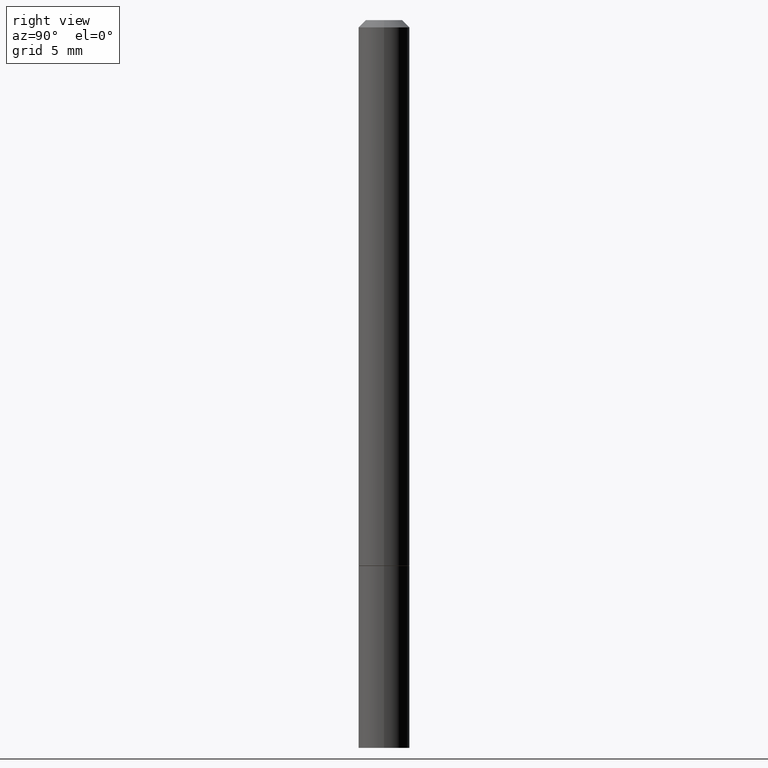
[diagram: clean part render]
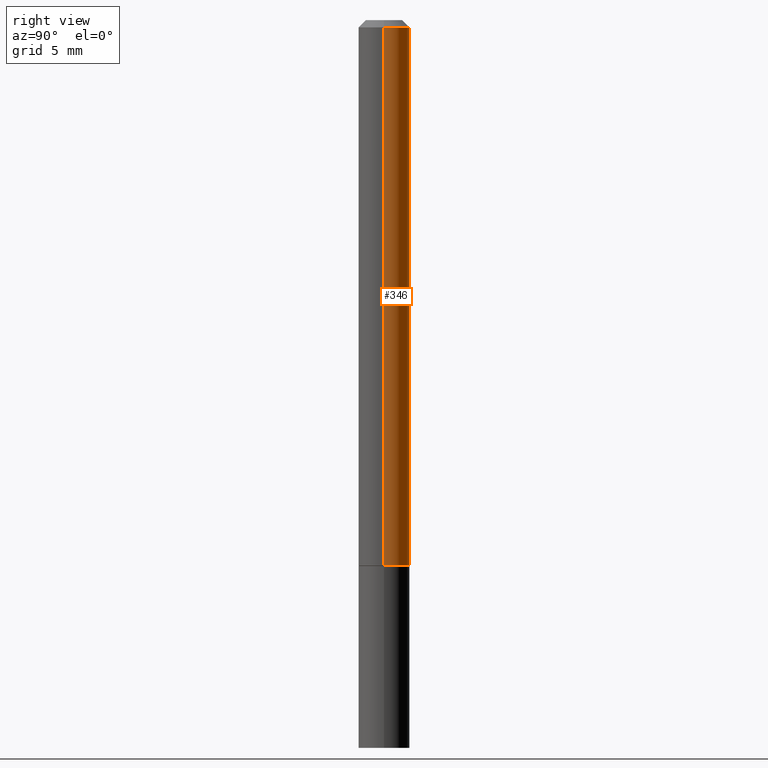
[diagram: same view with one face highlighted and labeled with its STEP entity id]
A machine part, right view. The second image highlights one B-rep face of the part: STEP entity #346.
In plain terms, the highlighted cylindrical surface (edge-blend (fillet) strip) has radius 1.7856 mm, axis along (-0, 0, 1).
Its self-contained STEP definition (entity closure, byte-faithful):
#4 = VERTEX_POINT ( 'NONE', #78 ) ;
#13 = DIRECTION ( 'NONE',  ( -2.445468806185136597E-29, 3.491481338843145583E-15, 1.000000000000000000 ) ) ;
#50 = AXIS2_PLACEMENT_3D ( 'NONE', #319, #281, #130 ) ;
#56 = CARTESIAN_POINT ( 'NONE',  ( 0.07029999999999980709, -5.521226360202004844E-16, -0.02000000000000004205 ) ) ;
#62 = ORIENTED_EDGE ( 'NONE', *, *, #307, .T. ) ;
#78 = CARTESIAN_POINT ( 'NONE',  ( -0.07030000000000000138, -2.152268533612014652E-15, -1.498999999999999444 ) ) ;
#81 = CARTESIAN_POINT ( 'NONE',  ( 4.890937612370283668E-31, -6.982962677686305168E-17, -0.02000000000000004205 ) ) ;
#85 = DIRECTION ( 'NONE',  ( 1.000000000000000000, -6.982962677686267499E-15, 0.000000000000000000 ) ) ;
#96 = CIRCLE ( 'NONE', #122, 0.07030000000000000138 ) ;
#102 = AXIS2_PLACEMENT_3D ( 'NONE', #81, #13, #85 ) ;
#122 = AXIS2_PLACEMENT_3D ( 'NONE', #231, #285, #351 ) ;
#130 = DIRECTION ( 'NONE',  ( 1.000000000000000000, -6.982962677686266711E-15, 4.876176775795935793E-29 ) ) ;
#133 = CIRCLE ( 'NONE', #102, 0.07029999999999980709 ) ;
#141 = LINE ( 'NONE', #370, #310 ) ;
#159 = EDGE_CURVE ( 'NONE', #4, #230, #141, .T. ) ;
#174 = EDGE_CURVE ( 'NONE', #233, #230, #133, .T. ) ;
#192 = CARTESIAN_POINT ( 'NONE',  ( 0.07029999999999990423, -4.909022762413438627E-16, 3.427952273384538232E-30 ) ) ;
#194 = FACE_OUTER_BOUND ( 'NONE', #338, .T. ) ;
#195 = LINE ( 'NONE', #192, #355 ) ;
#203 = CARTESIAN_POINT ( 'NONE',  ( 0.07030000000000000138, -5.724632803167218539E-15, -1.498999999999999444 ) ) ;
#215 = EDGE_CURVE ( 'NONE', #220, #233, #195, .T. ) ;
#220 = VERTEX_POINT ( 'NONE', #203 ) ;
#230 = VERTEX_POINT ( 'NONE', #327 ) ;
#231 = CARTESIAN_POINT ( 'NONE',  ( 3.665757740471518171E-29, -5.233730526925873592E-15, -1.498999999999999444 ) ) ;
#233 = VERTEX_POINT ( 'NONE', #56 ) ;
#251 = ORIENTED_EDGE ( 'NONE', *, *, #174, .F. ) ;
#262 = DIRECTION ( 'NONE',  ( -2.445468806185136877E-29, 3.491481338843145188E-15, 1.000000000000000000 ) ) ;
#281 = DIRECTION ( 'NONE',  ( -2.445468806185136597E-29, 3.491481338843145583E-15, 1.000000000000000000 ) ) ;
#285 = DIRECTION ( 'NONE',  ( -2.445468806185136597E-29, 3.491481338843145583E-15, 1.000000000000000000 ) ) ;
#292 = DIRECTION ( 'NONE',  ( -2.445468806185136877E-29, 3.491481338843145188E-15, 1.000000000000000000 ) ) ;
#307 = EDGE_CURVE ( 'NONE', #220, #4, #96, .T. ) ;
#308 = ORIENTED_EDGE ( 'NONE', *, *, #215, .F. ) ;
#310 = VECTOR ( 'NONE', #262, 39.37007874015748143 ) ;
#311 = ORIENTED_EDGE ( 'NONE', *, *, #159, .T. ) ;
#319 = CARTESIAN_POINT ( 'NONE',  ( 0.000000000000000000, 0.000000000000000000, 0.000000000000000000 ) ) ;
#324 = CYLINDRICAL_SURFACE ( 'NONE', #50, 0.07029999999999990423 ) ;
#327 = CARTESIAN_POINT ( 'NONE',  ( -0.07029999999999980709, 4.210726494644801207E-16, -0.02000000000000004205 ) ) ;
#338 = EDGE_LOOP ( 'NONE', ( #62, #311, #251, #308 ) ) ;
#346 = ADVANCED_FACE ( 'NONE', ( #194 ), #324, .T. ) ;
#351 = DIRECTION ( 'NONE',  ( 1.000000000000000000, -6.982962677686265133E-15, 0.000000000000000000 ) ) ;
#355 = VECTOR ( 'NONE', #292, 39.37007874015748143 ) ;
#370 = CARTESIAN_POINT ( 'NONE',  ( -0.07029999999999990423, 4.995115432393497502E-16, -3.458011368449193965E-30 ) ) ;